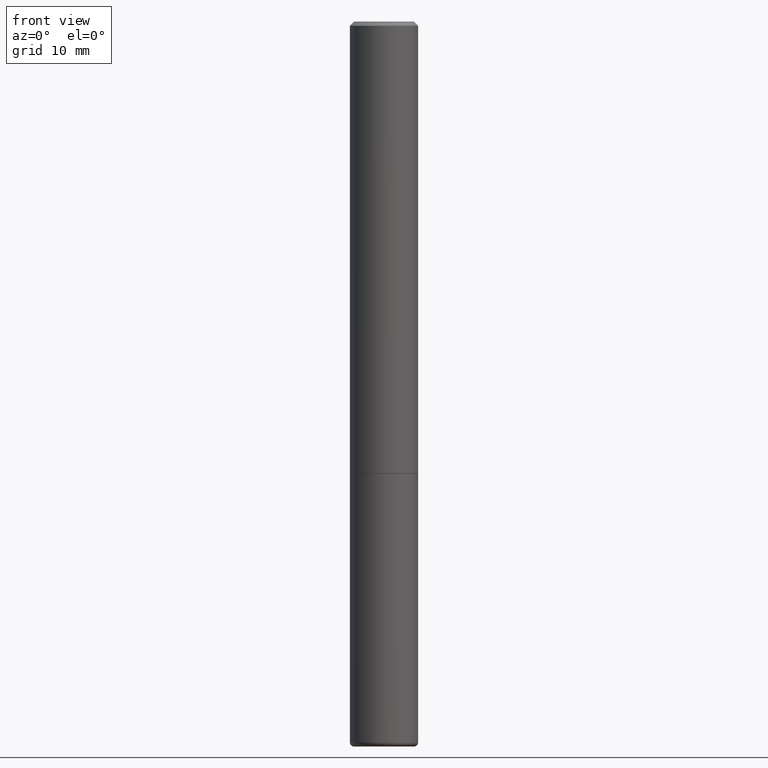
[diagram: clean part render]
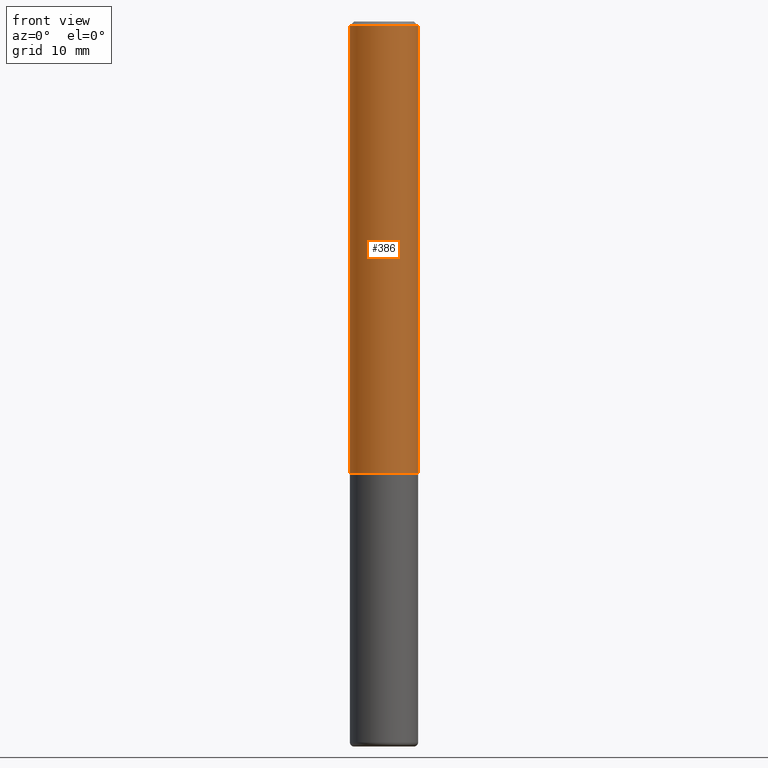
[diagram: same view with one face highlighted and labeled with its STEP entity id]
A machine part, front view. The second image highlights one B-rep face of the part: STEP entity #386.
In plain terms, the highlighted cylindrical surface (edge-blend (fillet) strip) has radius 4.0005 mm, axis along (-0, 0, 1).
Its self-contained STEP definition (entity closure, byte-faithful):
#9 = LINE ( 'NONE', #318, #348 ) ;
#26 = CARTESIAN_POINT ( 'NONE',  ( 4.890937612370281041E-31, -6.982962677686302702E-17, -0.02000000000000003511 ) ) ;
#43 = VERTEX_POINT ( 'NONE', #268 ) ;
#44 = ORIENTED_EDGE ( 'NONE', *, *, #159, .F. ) ;
#57 = CARTESIAN_POINT ( 'NONE',  ( -0.1575000000000000289, 1.029986994958724182E-15, -0.02000000000000003511 ) ) ;
#59 = EDGE_CURVE ( 'NONE', #248, #99, #167, .T. ) ;
#60 = DIRECTION ( 'NONE',  ( -2.445468806185136877E-29, 3.491481338843145188E-15, 1.000000000000000000 ) ) ;
#71 = DIRECTION ( 'NONE',  ( -2.445468806185136597E-29, 3.491481338843145583E-15, 1.000000000000000000 ) ) ;
#75 = CARTESIAN_POINT ( 'NONE',  ( 0.1575000000000001954, -8.381999250160736190E-15, -2.085699999999999665 ) ) ;
#99 = VERTEX_POINT ( 'NONE', #236 ) ;
#104 = CYLINDRICAL_SURFACE ( 'NONE', #320, 0.1575000000000000844 ) ;
#111 = CIRCLE ( 'NONE', #138, 0.1575000000000000289 ) ;
#112 = EDGE_LOOP ( 'NONE', ( #44, #341, #273, #169 ) ) ;
#136 = FACE_OUTER_BOUND ( 'NONE', #112, .T. ) ;
#138 = AXIS2_PLACEMENT_3D ( 'NONE', #26, #347, #218 ) ;
#159 = EDGE_CURVE ( 'NONE', #43, #208, #9, .T. ) ;
#167 = LINE ( 'NONE', #401, #202 ) ;
#168 = DIRECTION ( 'NONE',  ( 1.000000000000000000, -6.982962677686265922E-15, 0.000000000000000000 ) ) ;
#169 = ORIENTED_EDGE ( 'NONE', *, *, #189, .F. ) ;
#184 = AXIS2_PLACEMENT_3D ( 'NONE', #272, #71, #168 ) ;
#189 = EDGE_CURVE ( 'NONE', #208, #99, #111, .T. ) ;
#202 = VECTOR ( 'NONE', #260, 39.37007874015748143 ) ;
#208 = VERTEX_POINT ( 'NONE', #57 ) ;
#218 = DIRECTION ( 'NONE',  ( 1.000000000000000000, -6.982962677686267499E-15, 0.000000000000000000 ) ) ;
#236 = CARTESIAN_POINT ( 'NONE',  ( 0.1575000000000000289, -1.150358061425879472E-15, -0.02000000000000003511 ) ) ;
#248 = VERTEX_POINT ( 'NONE', #75 ) ;
#260 = DIRECTION ( 'NONE',  ( -2.445468806185136877E-29, 3.491481338843145188E-15, 1.000000000000000000 ) ) ;
#267 = CARTESIAN_POINT ( 'NONE',  ( 0.000000000000000000, 0.000000000000000000, 0.000000000000000000 ) ) ;
#268 = CARTESIAN_POINT ( 'NONE',  ( -0.1575000000000001954, -2.556901318778844062E-15, -2.085699999999999665 ) ) ;
#272 = CARTESIAN_POINT ( 'NONE',  ( 5.100514289060338336E-29, -7.282182628425147921E-15, -2.085699999999999665 ) ) ;
#273 = ORIENTED_EDGE ( 'NONE', *, *, #59, .T. ) ;
#294 = CIRCLE ( 'NONE', #184, 0.1575000000000001954 ) ;
#318 = CARTESIAN_POINT ( 'NONE',  ( -0.1575000000000000844, 1.119104808822158392E-15, -7.747322767151481189E-30 ) ) ;
#320 = AXIS2_PLACEMENT_3D ( 'NONE', #267, #366, #330 ) ;
#330 = DIRECTION ( 'NONE',  ( 1.000000000000000000, -6.982962677686267499E-15, 4.876176775795936353E-29 ) ) ;
#341 = ORIENTED_EDGE ( 'NONE', *, *, #355, .T. ) ;
#347 = DIRECTION ( 'NONE',  ( -2.445468806185136597E-29, 3.491481338843145583E-15, 1.000000000000000000 ) ) ;
#348 = VECTOR ( 'NONE', #60, 39.37007874015748143 ) ;
#355 = EDGE_CURVE ( 'NONE', #43, #248, #294, .T. ) ;
#366 = DIRECTION ( 'NONE',  ( -2.445468806185136597E-29, 3.491481338843145583E-15, 1.000000000000000000 ) ) ;
#386 = ADVANCED_FACE ( 'NONE', ( #136 ), #104, .T. ) ;
#401 = CARTESIAN_POINT ( 'NONE',  ( 0.1575000000000000844, -1.099816621735587677E-15, 7.679978421878603638E-30 ) ) ;